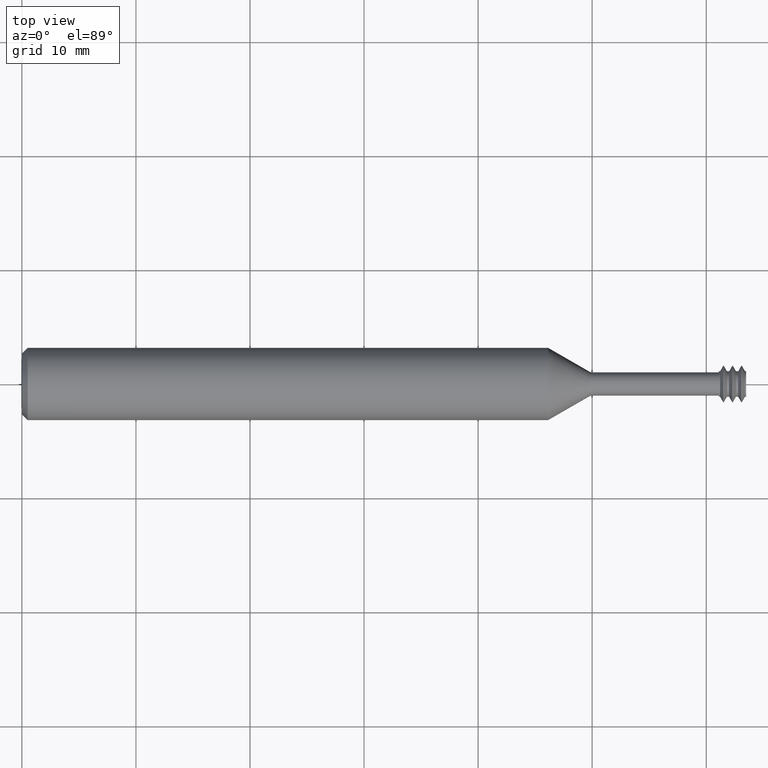
[diagram: clean part render]
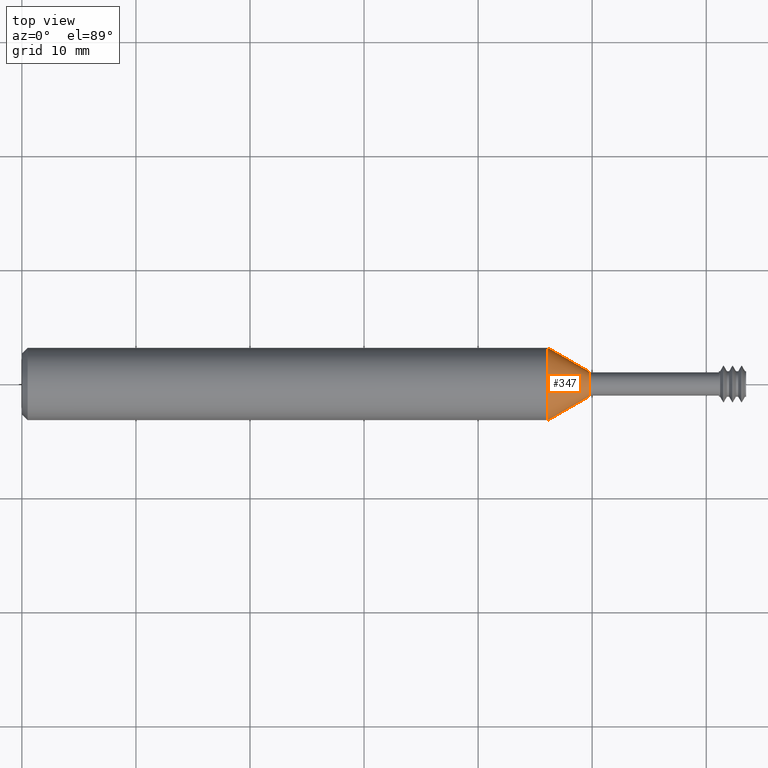
[diagram: same view with one face highlighted and labeled with its STEP entity id]
A machine part, top view. The second image highlights one B-rep face of the part: STEP entity #347.
In plain terms, the highlighted conical surface has half-angle 30 deg.
Its self-contained STEP definition (entity closure, byte-faithful):
#7 = CARTESIAN_POINT ( 'NONE',  ( 1.816336759167003656, 0.1248500000000000026, 1.528971528735470422E-17 ) ) ;
#28 = EDGE_CURVE ( 'NONE', #118, #49, #745, .T. ) ;
#49 = VERTEX_POINT ( 'NONE', #7 ) ;
#117 = FACE_OUTER_BOUND ( 'NONE', #859, .T. ) ;
#118 = VERTEX_POINT ( 'NONE', #733 ) ;
#122 = AXIS2_PLACEMENT_3D ( 'NONE', #226, #481, #718 ) ;
#158 = CIRCLE ( 'NONE', #122, 0.04334936490538921633 ) ;
#163 = DIRECTION ( 'NONE',  ( -1.000000000000000000, 3.312725351696573770E-18, -0.000000000000000000 ) ) ;
#226 = CARTESIAN_POINT ( 'NONE',  ( 1.957500000000000462, 5.282037017085286357E-18, 0.000000000000000000 ) ) ;
#293 = VECTOR ( 'NONE', #343, 39.37007874015748854 ) ;
#340 = LINE ( 'NONE', #659, #293 ) ;
#343 = DIRECTION ( 'NONE',  ( -0.8660254037844379305, 0.5000000000000009992, 6.123233995736778362E-17 ) ) ;
#347 = ADVANCED_FACE ( 'NONE', ( #117 ), #402, .T. ) ;
#394 = ORIENTED_EDGE ( 'NONE', *, *, #28, .F. ) ;
#402 = CONICAL_SURFACE ( 'NONE', #1006, 0.04334936490538920245, 0.5235987755983001479 ) ;
#468 = ORIENTED_EDGE ( 'NONE', *, *, #518, .F. ) ;
#481 = DIRECTION ( 'NONE',  ( -1.000000000000000000, 3.312725351696573770E-18, -0.000000000000000000 ) ) ;
#518 = EDGE_CURVE ( 'NONE', #588, #118, #540, .T. ) ;
#529 = EDGE_CURVE ( 'NONE', #588, #888, #158, .T. ) ;
#540 = LINE ( 'NONE', #711, #1018 ) ;
#551 = EDGE_CURVE ( 'NONE', #888, #49, #340, .T. ) ;
#588 = VERTEX_POINT ( 'NONE', #987 ) ;
#615 = DIRECTION ( 'NONE',  ( -1.000000000000000000, 3.312725351696573770E-18, -0.000000000000000000 ) ) ;
#633 = CARTESIAN_POINT ( 'NONE',  ( 1.816336759167003656, 5.749672063720403816E-18, 0.000000000000000000 ) ) ;
#659 = CARTESIAN_POINT ( 'NONE',  ( 1.957500000000000462, 0.04334936490538921633, 5.308766097645548990E-18 ) ) ;
#672 = CARTESIAN_POINT ( 'NONE',  ( 1.957500000000000462, 0.04334936490538922327, 1.029924069250012853E-17 ) ) ;
#711 = CARTESIAN_POINT ( 'NONE',  ( 1.957500000000000462, -0.04334936490538919551, 0.000000000000000000 ) ) ;
#718 = DIRECTION ( 'NONE',  ( 0.000000000000000000, -1.000000000000000000, 0.000000000000000000 ) ) ;
#733 = CARTESIAN_POINT ( 'NONE',  ( 1.816336759167003656, -0.1248500000000000026, 0.000000000000000000 ) ) ;
#745 = CIRCLE ( 'NONE', #832, 0.1248500000000000026 ) ;
#766 = DIRECTION ( 'NONE',  ( 0.000000000000000000, -1.000000000000000000, 0.000000000000000000 ) ) ;
#769 = CARTESIAN_POINT ( 'NONE',  ( 1.957500000000000462, 5.282037017085286357E-18, 0.000000000000000000 ) ) ;
#832 = AXIS2_PLACEMENT_3D ( 'NONE', #633, #163, #951 ) ;
#859 = EDGE_LOOP ( 'NONE', ( #1013, #937, #394, #468 ) ) ;
#877 = DIRECTION ( 'NONE',  ( -0.8660254037844379305, -0.5000000000000009992, 0.000000000000000000 ) ) ;
#888 = VERTEX_POINT ( 'NONE', #672 ) ;
#937 = ORIENTED_EDGE ( 'NONE', *, *, #551, .T. ) ;
#951 = DIRECTION ( 'NONE',  ( 0.000000000000000000, -1.000000000000000000, 0.000000000000000000 ) ) ;
#987 = CARTESIAN_POINT ( 'NONE',  ( 1.957500000000000462, -0.04334936490538920245, 0.000000000000000000 ) ) ;
#1006 = AXIS2_PLACEMENT_3D ( 'NONE', #769, #615, #766 ) ;
#1013 = ORIENTED_EDGE ( 'NONE', *, *, #529, .T. ) ;
#1018 = VECTOR ( 'NONE', #877, 39.37007874015748854 ) ;